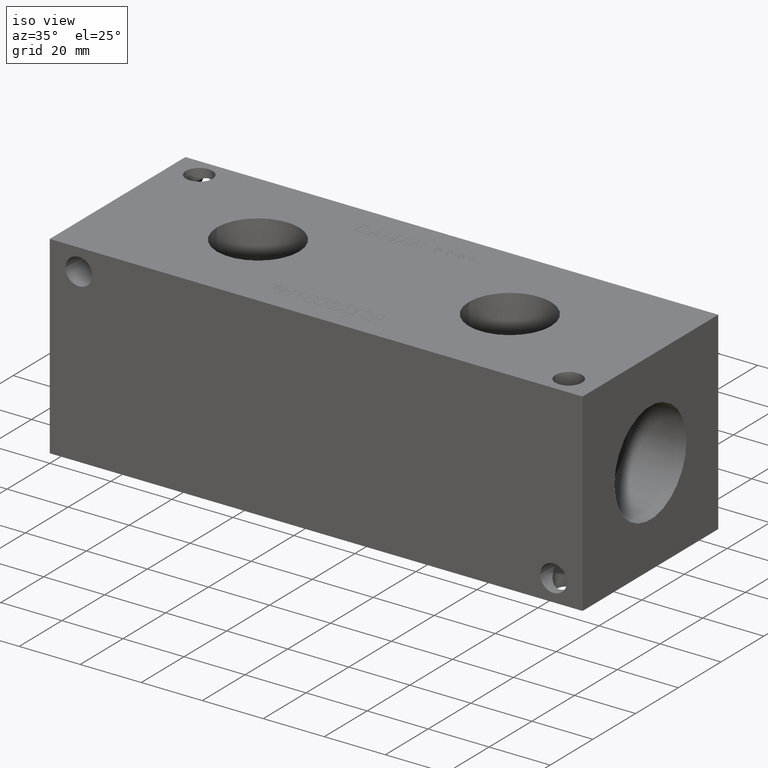
[diagram: clean part render]
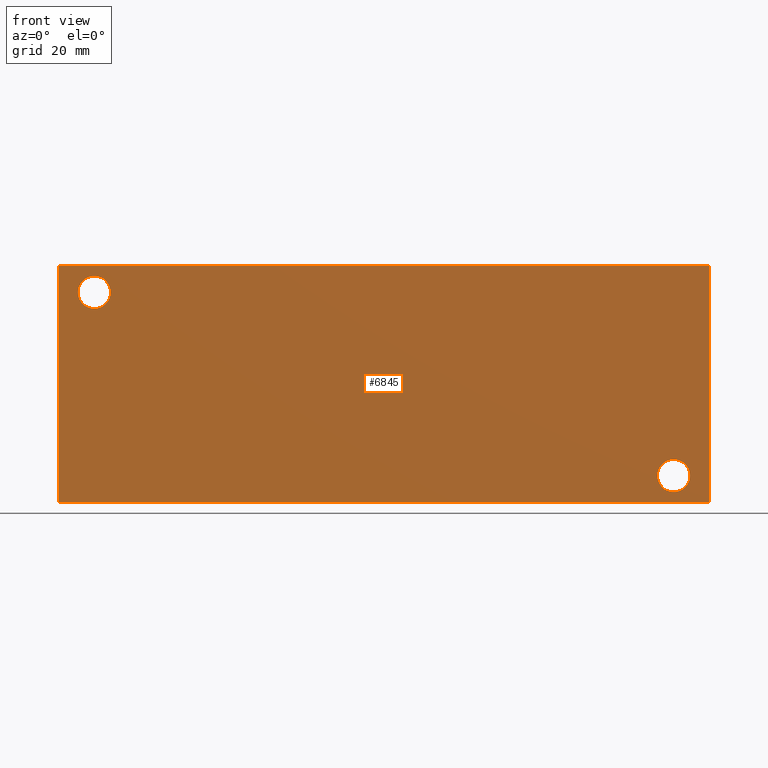
[diagram: tour spotlight — one face highlighted and labeled with its STEP entity id]
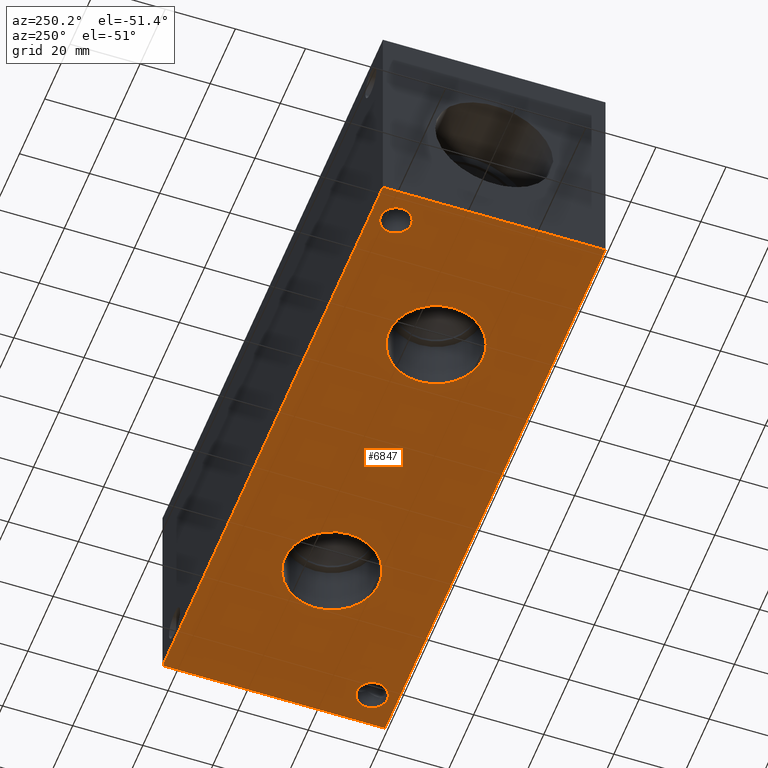
[diagram: tour spotlight — one face highlighted and labeled with its STEP entity id]
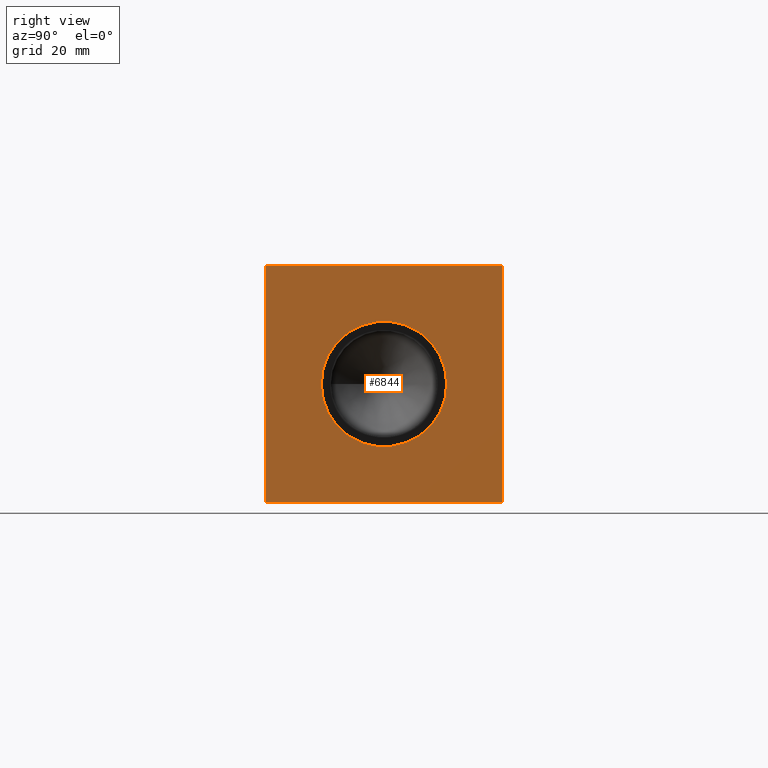
[diagram: tour spotlight — one face highlighted and labeled with its STEP entity id]
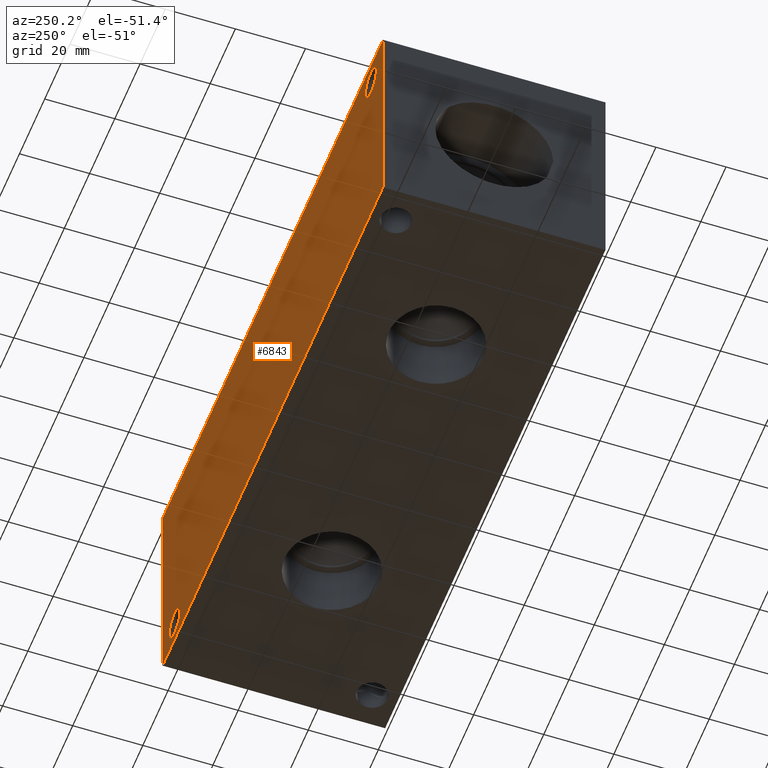
[diagram: tour spotlight — one face highlighted and labeled with its STEP entity id]
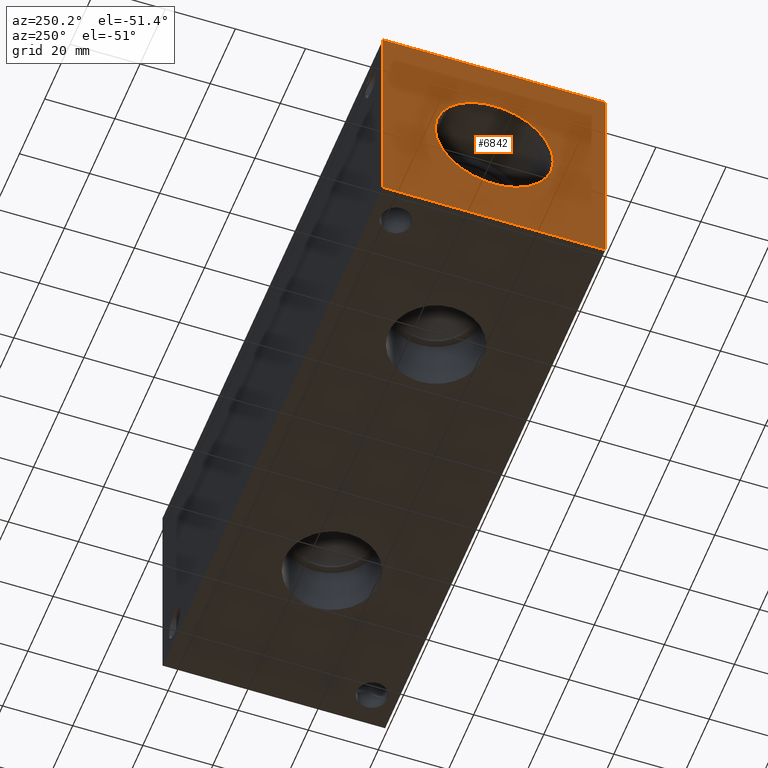
[diagram: tour spotlight — one face highlighted and labeled with its STEP entity id]
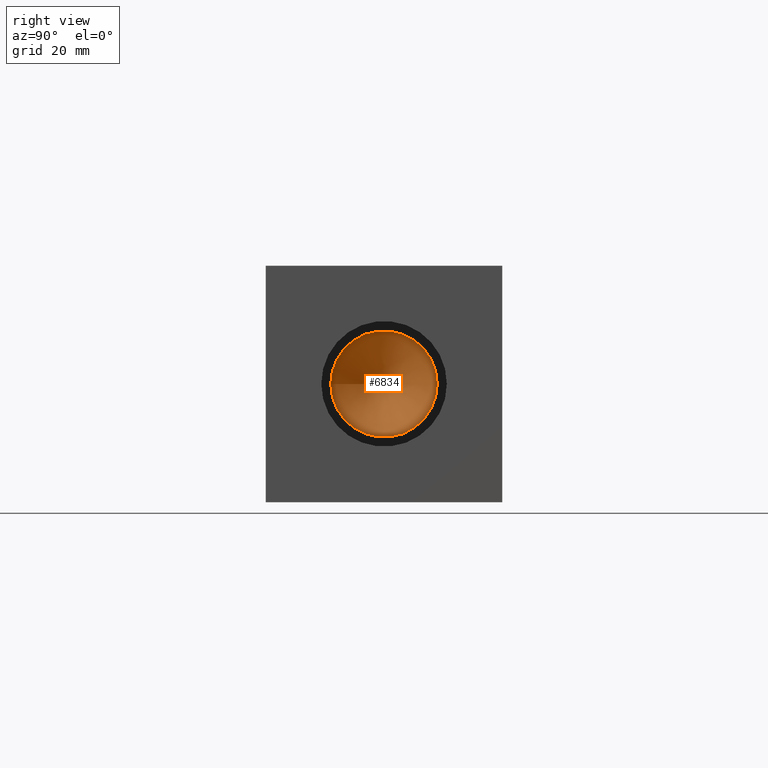
[diagram: tour spotlight — one face highlighted and labeled with its STEP entity id]
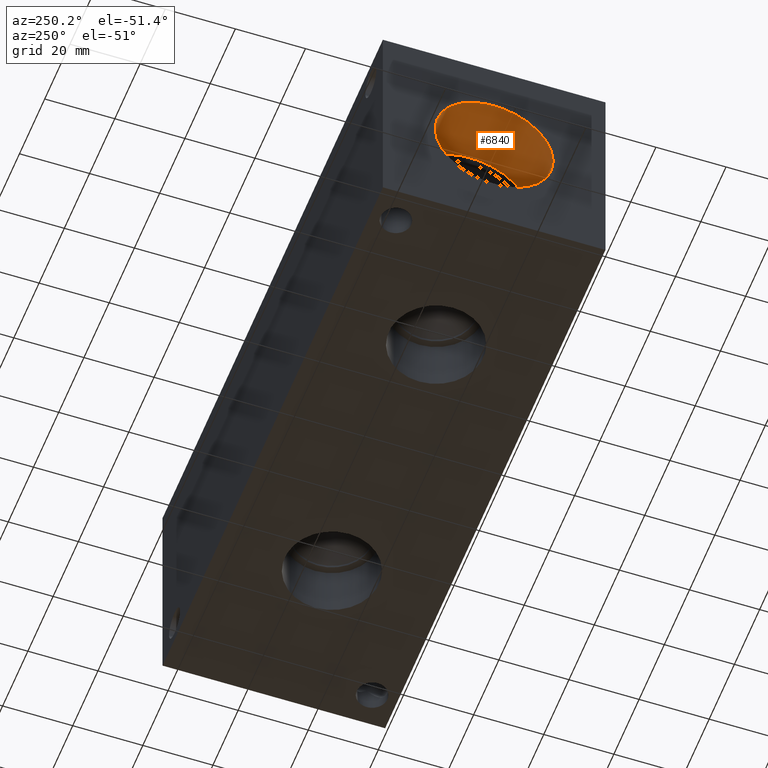
[diagram: tour spotlight — one face highlighted and labeled with its STEP entity id]
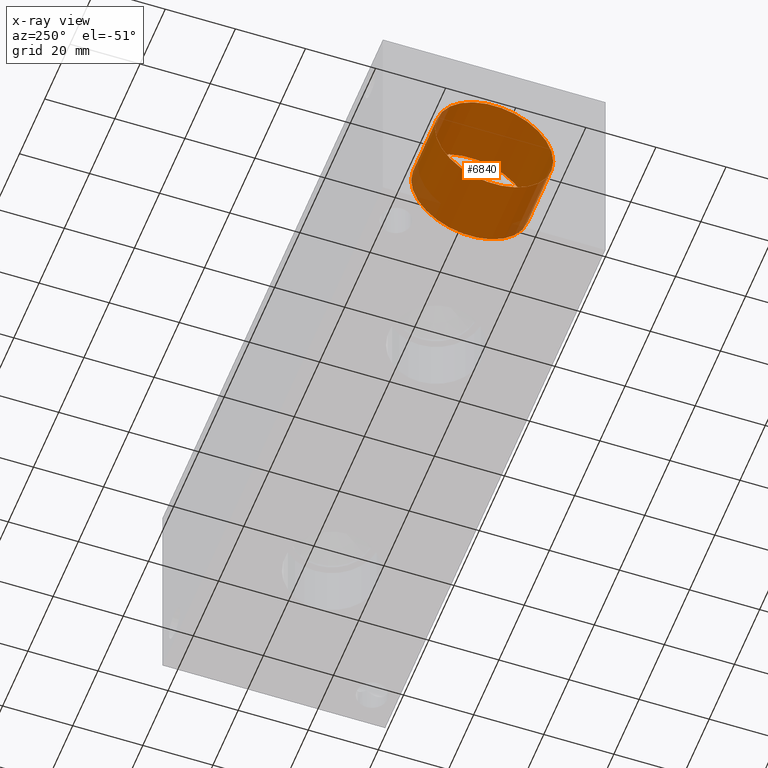
[diagram: x-ray of the same camera — body ghosted, this tour face saturated]
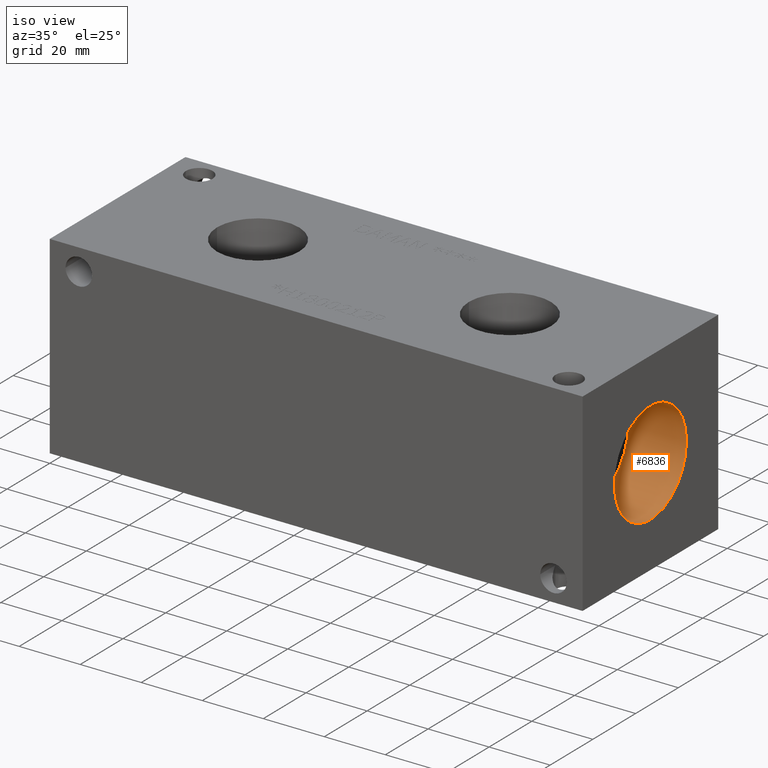
[diagram: tour spotlight — one face highlighted and labeled with its STEP entity id]
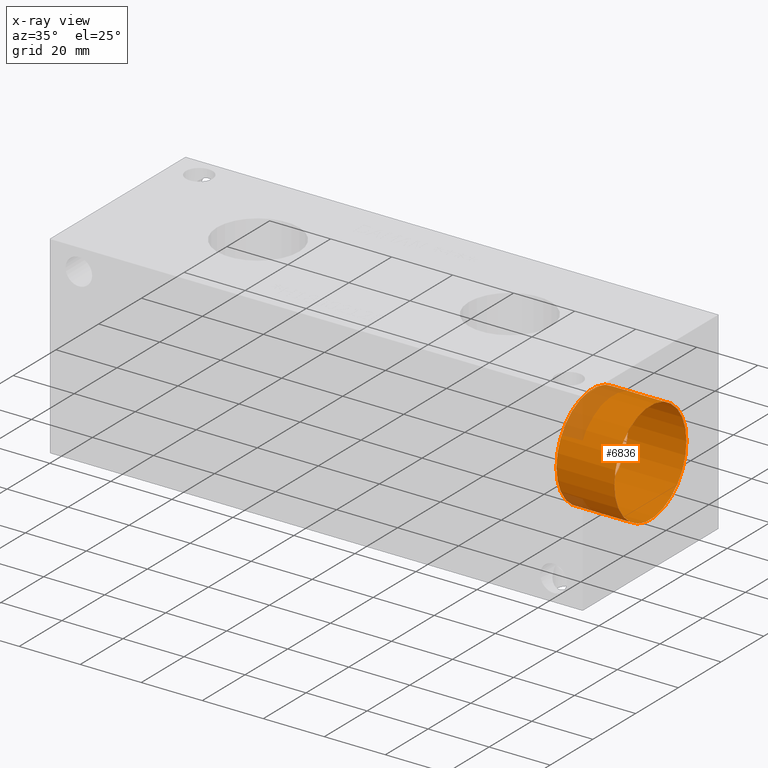
[diagram: x-ray of the same camera — body ghosted, this tour face saturated]
A machine part: a face-by-face anatomy tour. The part has 343 B-rep faces; the first image is the clean iso view, then the 8 largest visible faces are spotlighted one at a time (largest first), each with its STEP entity span.

Face 1 — front view, entity #6845. In plain terms, the highlighted planar face has unit normal (0, -1, 0).
Definition (entity closure, byte-faithful):
#70=CIRCLE('',#7115,4.3688);
#71=CIRCLE('',#7116,4.3688);
#73=CIRCLE('',#7124,4.3688);
#74=CIRCLE('',#7125,4.3688);
#143=FACE_BOUND('',#1108,.T.);
#144=FACE_BOUND('',#1109,.T.);
#380=PLANE('',#7181);
#723=FACE_OUTER_BOUND('',#1107,.T.);
#1107=EDGE_LOOP('',(#6103,#6104,#6105,#6106));
#1108=EDGE_LOOP('',(#6107,#6108));
#1109=EDGE_LOOP('',(#6109,#6110));
#1407=LINE('',#10407,#2113);
#1815=LINE('',#11507,#2521);
#1820=LINE('',#11516,#2526);
#1821=LINE('',#11518,#2527);
#2113=VECTOR('',#7643,10.);
#2521=VECTOR('',#8519,10.);
#2526=VECTOR('',#8528,10.);
#2527=VECTOR('',#8531,10.);
#2988=VERTEX_POINT('',#10405);
#2989=VERTEX_POINT('',#10406);
#3278=VERTEX_POINT('',#11380);
#3279=VERTEX_POINT('',#11381);
#3283=VERTEX_POINT('',#11396);
#3284=VERTEX_POINT('',#11397);
#3319=VERTEX_POINT('',#11505);
#3321=VERTEX_POINT('',#11514);
#3763=EDGE_CURVE('',#2988,#2989,#1407,.T.);
#4188=EDGE_CURVE('',#3278,#3279,#70,.T.);
#4189=EDGE_CURVE('',#3279,#3278,#71,.T.);
#4197=EDGE_CURVE('',#3283,#3284,#73,.T.);
#4198=EDGE_CURVE('',#3284,#3283,#74,.T.);
#4249=EDGE_CURVE('',#3319,#2988,#1815,.T.);
#4254=EDGE_CURVE('',#3321,#2989,#1820,.T.);
#4255=EDGE_CURVE('',#3319,#3321,#1821,.T.);
#6103=ORIENTED_EDGE('',*,*,#4255,.T.);
#6104=ORIENTED_EDGE('',*,*,#4254,.T.);
#6105=ORIENTED_EDGE('',*,*,#3763,.F.);
#6106=ORIENTED_EDGE('',*,*,#4249,.F.);
#6107=ORIENTED_EDGE('',*,*,#4188,.T.);
#6108=ORIENTED_EDGE('',*,*,#4189,.T.);
#6109=ORIENTED_EDGE('',*,*,#4197,.T.);
#6110=ORIENTED_EDGE('',*,*,#4198,.T.);
#6845=ADVANCED_FACE('',(#723,#143,#144),#380,.T.);
#7115=AXIS2_PLACEMENT_3D('',#11382,#8370,#8371);
#7116=AXIS2_PLACEMENT_3D('',#11383,#8372,#8373);
#7124=AXIS2_PLACEMENT_3D('',#11398,#8390,#8391);
#7125=AXIS2_PLACEMENT_3D('',#11399,#8392,#8393);
#7181=AXIS2_PLACEMENT_3D('',#11517,#8529,#8530);
#7643=DIRECTION('',(1.,0.,0.));
#8370=DIRECTION('center_axis',(0.,1.,0.));
#8371=DIRECTION('ref_axis',(1.,0.,0.));
#8372=DIRECTION('center_axis',(0.,1.,0.));
#8373=DIRECTION('ref_axis',(1.,0.,0.));
#8390=DIRECTION('center_axis',(0.,1.,0.));
#8391=DIRECTION('ref_axis',(1.,0.,0.));
#8392=DIRECTION('center_axis',(0.,1.,0.));
#8393=DIRECTION('ref_axis',(1.,0.,0.));
#8519=DIRECTION('',(0.,0.,1.));
#8528=DIRECTION('',(0.,0.,1.));
#8529=DIRECTION('center_axis',(0.,-1.,0.));
#8530=DIRECTION('ref_axis',(1.,0.,0.));
#8531=DIRECTION('',(1.,0.,0.));
#10405=CARTESIAN_POINT('',(0.,0.,63.5));
#10406=CARTESIAN_POINT('',(174.625,0.,63.5));
#10407=CARTESIAN_POINT('',(0.,0.,63.5));
#11380=CARTESIAN_POINT('',(13.8938,0.,56.3626));
#11381=CARTESIAN_POINT('',(5.1562,0.,56.3626));
#11382=CARTESIAN_POINT('Origin',(9.525,0.,56.3626));
#11383=CARTESIAN_POINT('Origin',(9.525,0.,56.3626));
#11396=CARTESIAN_POINT('',(169.4688,0.,7.1374));
#11397=CARTESIAN_POINT('',(160.7312,0.,7.1374));
#11398=CARTESIAN_POINT('Origin',(165.1,0.,7.1374));
#11399=CARTESIAN_POINT('Origin',(165.1,0.,7.1374));
#11505=CARTESIAN_POINT('',(0.,0.,0.));
#11507=CARTESIAN_POINT('',(0.,0.,0.));
#11514=CARTESIAN_POINT('',(174.625,0.,0.));
#11516=CARTESIAN_POINT('',(174.625,0.,0.));
#11517=CARTESIAN_POINT('Origin',(0.,0.,0.));
#11518=CARTESIAN_POINT('',(0.,0.,0.));

Face 2 — auxiliary view, entity #6847. In plain terms, the highlighted planar face has unit normal (0, 0, 1).
Definition (entity closure, byte-faithful):
#61=CIRCLE('',#7100,13.462);
#62=CIRCLE('',#7101,13.462);
#68=CIRCLE('',#7111,13.462);
#69=CIRCLE('',#7112,13.462);
#76=CIRCLE('',#7135,4.3688);
#77=CIRCLE('',#7137,4.3688);
#145=FACE_BOUND('',#1112,.T.);
#146=FACE_BOUND('',#1113,.T.);
#147=FACE_BOUND('',#1114,.T.);
#148=FACE_BOUND('',#1115,.T.);
#382=PLANE('',#7183);
#725=FACE_OUTER_BOUND('',#1111,.T.);
#1111=EDGE_LOOP('',(#6114,#6115,#6116,#6117));
#1112=EDGE_LOOP('',(#6118,#6119));
#1113=EDGE_LOOP('',(#6120,#6121));
#1114=EDGE_LOOP('',(#6122));
#1115=EDGE_LOOP('',(#6123));
#1814=LINE('',#11506,#2520);
#1817=LINE('',#11511,#2523);
#1819=LINE('',#11515,#2525);
#1821=LINE('',#11518,#2527);
#2520=VECTOR('',#8518,10.);
#2523=VECTOR('',#8523,10.);
#2525=VECTOR('',#8527,10.);
#2527=VECTOR('',#8531,10.);
#3268=VERTEX_POINT('',#11350);
#3269=VERTEX_POINT('',#11351);
#3276=VERTEX_POINT('',#11372);
#3277=VERTEX_POINT('',#11373);
#3288=VERTEX_POINT('',#11416);
#3289=VERTEX_POINT('',#11420);
#3318=VERTEX_POINT('',#11504);
#3319=VERTEX_POINT('',#11505);
#3320=VERTEX_POINT('',#11510);
#3321=VERTEX_POINT('',#11514);
#4174=EDGE_CURVE('',#3268,#3269,#61,.T.);
#4175=EDGE_CURVE('',#3269,#3268,#62,.T.);
#4184=EDGE_CURVE('',#3276,#3277,#68,.T.);
#4185=EDGE_CURVE('',#3277,#3276,#69,.T.);
#4209=EDGE_CURVE('',#3288,#3288,#76,.T.);
#4211=EDGE_CURVE('',#3289,#3289,#77,.T.);
#4248=EDGE_CURVE('',#3318,#3319,#1814,.T.);
#4251=EDGE_CURVE('',#3320,#3318,#1817,.T.);
#4253=EDGE_CURVE('',#3321,#3320,#1819,.T.);
#4255=EDGE_CURVE('',#3319,#3321,#1821,.T.);
#6114=ORIENTED_EDGE('',*,*,#4255,.F.);
#6115=ORIENTED_EDGE('',*,*,#4248,.F.);
#6116=ORIENTED_EDGE('',*,*,#4251,.F.);
#6117=ORIENTED_EDGE('',*,*,#4253,.F.);
#6118=ORIENTED_EDGE('',*,*,#4174,.T.);
#6119=ORIENTED_EDGE('',*,*,#4175,.T.);
#6120=ORIENTED_EDGE('',*,*,#4184,.T.);
#6121=ORIENTED_EDGE('',*,*,#4185,.T.);
#6122=ORIENTED_EDGE('',*,*,#4209,.T.);
#6123=ORIENTED_EDGE('',*,*,#4211,.T.);
#6847=ADVANCED_FACE('',(#725,#145,#146,#147,#148),#382,.F.);
#7100=AXIS2_PLACEMENT_3D('',#11352,#8335,#8336);
#7101=AXIS2_PLACEMENT_3D('',#11353,#8337,#8338);
#7111=AXIS2_PLACEMENT_3D('',#11374,#8360,#8361);
#7112=AXIS2_PLACEMENT_3D('',#11375,#8362,#8363);
#7135=AXIS2_PLACEMENT_3D('',#11418,#8417,#8418);
#7137=AXIS2_PLACEMENT_3D('',#11422,#8422,#8423);
#7183=AXIS2_PLACEMENT_3D('',#11520,#8534,#8535);
#8335=DIRECTION('center_axis',(0.,0.,1.));
#8336=DIRECTION('ref_axis',(1.,0.,0.));
#8337=DIRECTION('center_axis',(0.,0.,1.));
#8338=DIRECTION('ref_axis',(1.,0.,0.));
#8360=DIRECTION('center_axis',(0.,0.,1.));
#8361=DIRECTION('ref_axis',(1.,0.,0.));
#8362=DIRECTION('center_axis',(0.,0.,1.));
#8363=DIRECTION('ref_axis',(1.,0.,0.));
#8417=DIRECTION('center_axis',(0.,0.,1.));
#8418=DIRECTION('ref_axis',(1.,0.,0.));
#8422=DIRECTION('center_axis',(0.,0.,1.));
#8423=DIRECTION('ref_axis',(1.,0.,0.));
#8518=DIRECTION('',(0.,-1.,0.));
#8523=DIRECTION('',(-1.,0.,0.));
#8527=DIRECTION('',(0.,1.,0.));
#8531=DIRECTION('',(1.,0.,0.));
#8534=DIRECTION('center_axis',(0.,0.,1.));
#8535=DIRECTION('ref_axis',(1.,0.,0.));
#11350=CARTESIAN_POINT('',(59.4868,31.75,0.));
#11351=CARTESIAN_POINT('',(32.5628,31.75,1.11022302462516E-15));
#11352=CARTESIAN_POINT('Origin',(46.0248,31.75,0.));
#11353=CARTESIAN_POINT('Origin',(46.0248,31.75,0.));
#11372=CARTESIAN_POINT('',(142.0368,31.75,0.));
#11373=CARTESIAN_POINT('',(115.1128,31.75,1.11022302462516E-15));
#11374=CARTESIAN_POINT('Origin',(128.5748,31.75,0.));
#11375=CARTESIAN_POINT('Origin',(128.5748,31.75,0.));
#11416=CARTESIAN_POINT('',(5.1562,56.3626,0.));
#11418=CARTESIAN_POINT('Origin',(9.525,56.3626,0.));
#11420=CARTESIAN_POINT('',(160.7312,7.1374,0.));
#11422=CARTESIAN_POINT('Origin',(165.1,7.1374,0.));
#11504=CARTESIAN_POINT('',(0.,63.5,0.));
#11505=CARTESIAN_POINT('',(0.,0.,0.));
#11506=CARTESIAN_POINT('',(0.,63.5,0.));
#11510=CARTESIAN_POINT('',(174.625,63.5,0.));
#11511=CARTESIAN_POINT('',(174.625,63.5,0.));
#11514=CARTESIAN_POINT('',(174.625,0.,0.));
#11515=CARTESIAN_POINT('',(174.625,0.,0.));
#11518=CARTESIAN_POINT('',(0.,0.,0.));
#11520=CARTESIAN_POINT('Origin',(87.3125,31.75,0.));

Face 3 — right view, entity #6844. In plain terms, the highlighted planar face has unit normal (1, 0, 0).
Definition (entity closure, byte-faithful):
#93=CIRCLE('',#7164,16.8529);
#94=CIRCLE('',#7165,16.8529);
#142=FACE_BOUND('',#1106,.T.);
#379=PLANE('',#7180);
#722=FACE_OUTER_BOUND('',#1105,.T.);
#1105=EDGE_LOOP('',(#6097,#6098,#6099,#6100));
#1106=EDGE_LOOP('',(#6101,#6102));
#1408=LINE('',#10409,#2114);
#1818=LINE('',#11512,#2524);
#1819=LINE('',#11515,#2525);
#1820=LINE('',#11516,#2526);
#2114=VECTOR('',#7644,10.);
#2524=VECTOR('',#8524,10.);
#2525=VECTOR('',#8527,10.);
#2526=VECTOR('',#8528,10.);
#2989=VERTEX_POINT('',#10406);
#2990=VERTEX_POINT('',#10408);
#3308=VERTEX_POINT('',#11474);
#3309=VERTEX_POINT('',#11475);
#3320=VERTEX_POINT('',#11510);
#3321=VERTEX_POINT('',#11514);
#3764=EDGE_CURVE('',#2989,#2990,#1408,.T.);
#4234=EDGE_CURVE('',#3308,#3309,#93,.T.);
#4235=EDGE_CURVE('',#3309,#3308,#94,.T.);
#4252=EDGE_CURVE('',#3320,#2990,#1818,.T.);
#4253=EDGE_CURVE('',#3321,#3320,#1819,.T.);
#4254=EDGE_CURVE('',#3321,#2989,#1820,.T.);
#6097=ORIENTED_EDGE('',*,*,#4253,.T.);
#6098=ORIENTED_EDGE('',*,*,#4252,.T.);
#6099=ORIENTED_EDGE('',*,*,#3764,.F.);
#6100=ORIENTED_EDGE('',*,*,#4254,.F.);
#6101=ORIENTED_EDGE('',*,*,#4234,.T.);
#6102=ORIENTED_EDGE('',*,*,#4235,.T.);
#6844=ADVANCED_FACE('',(#722,#142),#379,.T.);
#7164=AXIS2_PLACEMENT_3D('',#11476,#8483,#8484);
#7165=AXIS2_PLACEMENT_3D('',#11477,#8485,#8486);
#7180=AXIS2_PLACEMENT_3D('',#11513,#8525,#8526);
#7644=DIRECTION('',(0.,1.,0.));
#8483=DIRECTION('center_axis',(-1.,0.,0.));
#8484=DIRECTION('ref_axis',(0.,1.,0.));
#8485=DIRECTION('center_axis',(-1.,0.,0.));
#8486=DIRECTION('ref_axis',(0.,1.,0.));
#8524=DIRECTION('',(0.,0.,1.));
#8525=DIRECTION('center_axis',(1.,0.,0.));
#8526=DIRECTION('ref_axis',(0.,1.,0.));
#8527=DIRECTION('',(0.,1.,0.));
#8528=DIRECTION('',(0.,0.,1.));
#10406=CARTESIAN_POINT('',(174.625,0.,63.5));
#10408=CARTESIAN_POINT('',(174.625,63.5,63.5));
#10409=CARTESIAN_POINT('',(174.625,0.,63.5));
#11474=CARTESIAN_POINT('',(174.625,48.6029,31.75));
#11475=CARTESIAN_POINT('',(174.625,14.8971,31.75));
#11476=CARTESIAN_POINT('Origin',(174.625,31.75,31.75));
#11477=CARTESIAN_POINT('Origin',(174.625,31.75,31.75));
#11510=CARTESIAN_POINT('',(174.625,63.5,0.));
#11512=CARTESIAN_POINT('',(174.625,63.5,0.));
#11513=CARTESIAN_POINT('Origin',(174.625,0.,0.));
#11514=CARTESIAN_POINT('',(174.625,0.,0.));
#11515=CARTESIAN_POINT('',(174.625,0.,0.));
#11516=CARTESIAN_POINT('',(174.625,0.,0.));

Face 4 — auxiliary view, entity #6843. In plain terms, the highlighted planar face has unit normal (0, 1, 0).
Definition (entity closure, byte-faithful):
#72=CIRCLE('',#7122,4.3688);
#75=CIRCLE('',#7131,4.3688);
#140=FACE_BOUND('',#1103,.T.);
#141=FACE_BOUND('',#1104,.T.);
#378=PLANE('',#7179);
#721=FACE_OUTER_BOUND('',#1102,.T.);
#1102=EDGE_LOOP('',(#6091,#6092,#6093,#6094));
#1103=EDGE_LOOP('',(#6095));
#1104=EDGE_LOOP('',(#6096));
#1409=LINE('',#10411,#2115);
#1816=LINE('',#11508,#2522);
#1817=LINE('',#11511,#2523);
#1818=LINE('',#11512,#2524);
#2115=VECTOR('',#7645,10.);
#2522=VECTOR('',#8520,10.);
#2523=VECTOR('',#8523,10.);
#2524=VECTOR('',#8524,10.);
#2990=VERTEX_POINT('',#10408);
#2991=VERTEX_POINT('',#10410);
#3282=VERTEX_POINT('',#11392);
#3287=VERTEX_POINT('',#11408);
#3318=VERTEX_POINT('',#11504);
#3320=VERTEX_POINT('',#11510);
#3765=EDGE_CURVE('',#2990,#2991,#1409,.T.);
#4196=EDGE_CURVE('',#3282,#3282,#72,.T.);
#4205=EDGE_CURVE('',#3287,#3287,#75,.T.);
#4250=EDGE_CURVE('',#3318,#2991,#1816,.T.);
#4251=EDGE_CURVE('',#3320,#3318,#1817,.T.);
#4252=EDGE_CURVE('',#3320,#2990,#1818,.T.);
#6091=ORIENTED_EDGE('',*,*,#4251,.T.);
#6092=ORIENTED_EDGE('',*,*,#4250,.T.);
#6093=ORIENTED_EDGE('',*,*,#3765,.F.);
#6094=ORIENTED_EDGE('',*,*,#4252,.F.);
#6095=ORIENTED_EDGE('',*,*,#4196,.T.);
#6096=ORIENTED_EDGE('',*,*,#4205,.T.);
#6843=ADVANCED_FACE('',(#721,#140,#141),#378,.T.);
#7122=AXIS2_PLACEMENT_3D('',#11394,#8386,#8387);
#7131=AXIS2_PLACEMENT_3D('',#11410,#8406,#8407);
#7179=AXIS2_PLACEMENT_3D('',#11509,#8521,#8522);
#7645=DIRECTION('',(-1.,0.,0.));
#8386=DIRECTION('center_axis',(0.,-1.,0.));
#8387=DIRECTION('ref_axis',(1.,0.,0.));
#8406=DIRECTION('center_axis',(0.,-1.,0.));
#8407=DIRECTION('ref_axis',(1.,0.,0.));
#8520=DIRECTION('',(0.,0.,1.));
#8521=DIRECTION('center_axis',(0.,1.,0.));
#8522=DIRECTION('ref_axis',(-1.,0.,0.));
#8523=DIRECTION('',(-1.,0.,0.));
#8524=DIRECTION('',(0.,0.,1.));
#10408=CARTESIAN_POINT('',(174.625,63.5,63.5));
#10410=CARTESIAN_POINT('',(0.,63.5,63.5));
#10411=CARTESIAN_POINT('',(174.625,63.5,63.5));
#11392=CARTESIAN_POINT('',(5.1562,63.5,56.3626));
#11394=CARTESIAN_POINT('Origin',(9.525,63.5,56.3626));
#11408=CARTESIAN_POINT('',(160.7312,63.5,7.1374));
#11410=CARTESIAN_POINT('Origin',(165.1,63.5,7.1374));
#11504=CARTESIAN_POINT('',(0.,63.5,0.));
#11508=CARTESIAN_POINT('',(0.,63.5,0.));
#11509=CARTESIAN_POINT('Origin',(174.625,63.5,0.));
#11510=CARTESIAN_POINT('',(174.625,63.5,0.));
#11511=CARTESIAN_POINT('',(174.625,63.5,0.));
#11512=CARTESIAN_POINT('',(174.625,63.5,0.));

Face 5 — auxiliary view, entity #6842. In plain terms, the highlighted planar face has unit normal (-1, 0, 0).
Definition (entity closure, byte-faithful):
#100=CIRCLE('',#7175,16.8529);
#101=CIRCLE('',#7176,16.8529);
#139=FACE_BOUND('',#1101,.T.);
#377=PLANE('',#7178);
#720=FACE_OUTER_BOUND('',#1100,.T.);
#1100=EDGE_LOOP('',(#6085,#6086,#6087,#6088));
#1101=EDGE_LOOP('',(#6089,#6090));
#1410=LINE('',#10412,#2116);
#1814=LINE('',#11506,#2520);
#1815=LINE('',#11507,#2521);
#1816=LINE('',#11508,#2522);
#2116=VECTOR('',#7646,10.);
#2520=VECTOR('',#8518,10.);
#2521=VECTOR('',#8519,10.);
#2522=VECTOR('',#8520,10.);
#2988=VERTEX_POINT('',#10405);
#2991=VERTEX_POINT('',#10410);
#3316=VERTEX_POINT('',#11496);
#3317=VERTEX_POINT('',#11497);
#3318=VERTEX_POINT('',#11504);
#3319=VERTEX_POINT('',#11505);
#3766=EDGE_CURVE('',#2991,#2988,#1410,.T.);
#4244=EDGE_CURVE('',#3316,#3317,#100,.T.);
#4245=EDGE_CURVE('',#3317,#3316,#101,.T.);
#4248=EDGE_CURVE('',#3318,#3319,#1814,.T.);
#4249=EDGE_CURVE('',#3319,#2988,#1815,.T.);
#4250=EDGE_CURVE('',#3318,#2991,#1816,.T.);
#6085=ORIENTED_EDGE('',*,*,#4248,.T.);
#6086=ORIENTED_EDGE('',*,*,#4249,.T.);
#6087=ORIENTED_EDGE('',*,*,#3766,.F.);
#6088=ORIENTED_EDGE('',*,*,#4250,.F.);
#6089=ORIENTED_EDGE('',*,*,#4244,.T.);
#6090=ORIENTED_EDGE('',*,*,#4245,.T.);
#6842=ADVANCED_FACE('',(#720,#139),#377,.T.);
#7175=AXIS2_PLACEMENT_3D('',#11498,#8508,#8509);
#7176=AXIS2_PLACEMENT_3D('',#11499,#8510,#8511);
#7178=AXIS2_PLACEMENT_3D('',#11503,#8516,#8517);
#7646=DIRECTION('',(0.,-1.,0.));
#8508=DIRECTION('center_axis',(1.,0.,0.));
#8509=DIRECTION('ref_axis',(0.,1.,0.));
#8510=DIRECTION('center_axis',(1.,0.,0.));
#8511=DIRECTION('ref_axis',(0.,1.,0.));
#8516=DIRECTION('center_axis',(-1.,0.,0.));
#8517=DIRECTION('ref_axis',(0.,-1.,0.));
#8518=DIRECTION('',(0.,-1.,0.));
#8519=DIRECTION('',(0.,0.,1.));
#8520=DIRECTION('',(0.,0.,1.));
#10405=CARTESIAN_POINT('',(0.,0.,63.5));
#10410=CARTESIAN_POINT('',(0.,63.5,63.5));
#10412=CARTESIAN_POINT('',(0.,63.5,63.5));
#11496=CARTESIAN_POINT('',(0.,48.6029,31.75));
#11497=CARTESIAN_POINT('',(0.,14.8971,31.75));
#11498=CARTESIAN_POINT('Origin',(0.,31.75,31.75));
#11499=CARTESIAN_POINT('Origin',(0.,31.75,31.75));
#11503=CARTESIAN_POINT('Origin',(0.,63.5,0.));
#11504=CARTESIAN_POINT('',(0.,63.5,0.));
#11505=CARTESIAN_POINT('',(0.,0.,0.));
#11506=CARTESIAN_POINT('',(0.,63.5,0.));
#11507=CARTESIAN_POINT('',(0.,0.,0.));
#11508=CARTESIAN_POINT('',(0.,63.5,0.));

Face 6 — right view, entity #6834. In plain terms, the highlighted conical surface has half-angle 60 deg.
Definition (entity closure, byte-faithful):
#46=CONICAL_SURFACE('',#7156,7.14375,1.0471975511966);
#88=CIRCLE('',#7157,14.2875);
#89=CIRCLE('',#7158,14.2875);
#712=FACE_OUTER_BOUND('',#1090,.T.);
#1090=EDGE_LOOP('',(#6049,#6050,#6051,#6052));
#1808=LINE('',#11464,#2514);
#2514=VECTOR('',#8470,7.14375);
#3302=VERTEX_POINT('',#11460);
#3303=VERTEX_POINT('',#11461);
#3304=VERTEX_POINT('',#11463);
#4228=EDGE_CURVE('',#3302,#3303,#88,.T.);
#4229=EDGE_CURVE('',#3303,#3304,#1808,.T.);
#4230=EDGE_CURVE('',#3303,#3302,#89,.T.);
#6049=ORIENTED_EDGE('',*,*,#4228,.T.);
#6050=ORIENTED_EDGE('',*,*,#4229,.T.);
#6051=ORIENTED_EDGE('',*,*,#4229,.F.);
#6052=ORIENTED_EDGE('',*,*,#4230,.T.);
#6834=ADVANCED_FACE('',(#712),#46,.F.);
#7156=AXIS2_PLACEMENT_3D('',#11459,#8466,#8467);
#7157=AXIS2_PLACEMENT_3D('',#11462,#8468,#8469);
#7158=AXIS2_PLACEMENT_3D('',#11465,#8471,#8472);
#8466=DIRECTION('center_axis',(1.,0.,0.));
#8467=DIRECTION('ref_axis',(0.,1.,0.));
#8468=DIRECTION('center_axis',(1.,0.,0.));
#8469=DIRECTION('ref_axis',(0.,1.,0.));
#8470=DIRECTION('',(-0.5,0.866025403784438,1.06057523872491E-16));
#8471=DIRECTION('center_axis',(1.,0.,0.));
#8472=DIRECTION('ref_axis',(0.,1.,0.));
#11459=CARTESIAN_POINT('Origin',(150.676464014477,31.75,31.75));
#11460=CARTESIAN_POINT('',(154.80091,46.0375,31.75));
#11461=CARTESIAN_POINT('',(154.80091,17.4625,31.75));
#11462=CARTESIAN_POINT('Origin',(154.80091,31.75,31.75));
#11463=CARTESIAN_POINT('',(146.552018028953,31.75,31.75));
#11464=CARTESIAN_POINT('',(150.676464014477,24.60625,31.75));
#11465=CARTESIAN_POINT('Origin',(154.80091,31.75,31.75));

Face 7 — auxiliary view, entity #6840. An x-ray twin of the same camera follows (body ghosted, this face saturated) — the face is partly hidden behind the body. In plain terms, the highlighted cylindrical surface (bore or boss wall) has radius 16.8529 mm, axis along (-1, 0, 0).
Definition (entity closure, byte-faithful):
#40=CYLINDRICAL_SURFACE('',#7174,16.8529);
#97=CIRCLE('',#7171,16.8529);
#98=CIRCLE('',#7172,16.8529);
#100=CIRCLE('',#7175,16.8529);
#101=CIRCLE('',#7176,16.8529);
#718=FACE_OUTER_BOUND('',#1098,.T.);
#1098=EDGE_LOOP('',(#6074,#6075,#6076,#6077,#6078,#6079));
#1812=LINE('',#11500,#2518);
#2518=VECTOR('',#8512,16.8529);
#3313=VERTEX_POINT('',#11489);
#3314=VERTEX_POINT('',#11490);
#3316=VERTEX_POINT('',#11496);
#3317=VERTEX_POINT('',#11497);
#4241=EDGE_CURVE('',#3313,#3314,#97,.T.);
#4242=EDGE_CURVE('',#3314,#3313,#98,.T.);
#4244=EDGE_CURVE('',#3316,#3317,#100,.T.);
#4245=EDGE_CURVE('',#3317,#3316,#101,.T.);
#4246=EDGE_CURVE('',#3317,#3314,#1812,.T.);
#6074=ORIENTED_EDGE('',*,*,#4244,.F.);
#6075=ORIENTED_EDGE('',*,*,#4245,.F.);
#6076=ORIENTED_EDGE('',*,*,#4246,.T.);
#6077=ORIENTED_EDGE('',*,*,#4241,.F.);
#6078=ORIENTED_EDGE('',*,*,#4242,.F.);
#6079=ORIENTED_EDGE('',*,*,#4246,.F.);
#6840=ADVANCED_FACE('',(#718),#40,.F.);
#7171=AXIS2_PLACEMENT_3D('',#11491,#8500,#8501);
#7172=AXIS2_PLACEMENT_3D('',#11492,#8502,#8503);
#7174=AXIS2_PLACEMENT_3D('',#11495,#8506,#8507);
#7175=AXIS2_PLACEMENT_3D('',#11498,#8508,#8509);
#7176=AXIS2_PLACEMENT_3D('',#11499,#8510,#8511);
#8500=DIRECTION('center_axis',(-1.,0.,0.));
#8501=DIRECTION('ref_axis',(0.,1.,0.));
#8502=DIRECTION('center_axis',(-1.,0.,0.));
#8503=DIRECTION('ref_axis',(0.,1.,0.));
#8506=DIRECTION('center_axis',(-1.,0.,0.));
#8507=DIRECTION('ref_axis',(0.,1.,0.));
#8508=DIRECTION('center_axis',(1.,0.,0.));
#8509=DIRECTION('ref_axis',(0.,1.,0.));
#8510=DIRECTION('center_axis',(1.,0.,0.));
#8511=DIRECTION('ref_axis',(0.,1.,0.));
#8512=DIRECTION('',(1.,0.,0.));
#11489=CARTESIAN_POINT('',(18.9992,48.6029,31.75));
#11490=CARTESIAN_POINT('',(18.9992,14.8971,31.75));
#11491=CARTESIAN_POINT('Origin',(18.9992,31.75,31.75));
#11492=CARTESIAN_POINT('Origin',(18.9992,31.75,31.75));
#11495=CARTESIAN_POINT('Origin',(9.4996,31.75,31.75));
#11496=CARTESIAN_POINT('',(0.,48.6029,31.75));
#11497=CARTESIAN_POINT('',(0.,14.8971,31.75));
#11498=CARTESIAN_POINT('Origin',(0.,31.75,31.75));
#11499=CARTESIAN_POINT('Origin',(0.,31.75,31.75));
#11500=CARTESIAN_POINT('',(9.4996,14.8971,31.75));

Face 8 — iso view, entity #6836. An x-ray twin of the same camera follows (body ghosted, this face saturated) — the face is partly hidden behind the body. In plain terms, the highlighted cylindrical surface (bore or boss wall) has radius 16.8529 mm, axis along (1, 0, 0).
Definition (entity closure, byte-faithful):
#38=CYLINDRICAL_SURFACE('',#7163,16.8529);
#90=CIRCLE('',#7160,16.8529);
#91=CIRCLE('',#7161,16.8529);
#93=CIRCLE('',#7164,16.8529);
#94=CIRCLE('',#7165,16.8529);
#714=FACE_OUTER_BOUND('',#1093,.T.);
#1093=EDGE_LOOP('',(#6056,#6057,#6058,#6059,#6060,#6061));
#1809=LINE('',#11478,#2515);
#2515=VECTOR('',#8487,16.8529);
#3305=VERTEX_POINT('',#11467);
#3306=VERTEX_POINT('',#11468);
#3308=VERTEX_POINT('',#11474);
#3309=VERTEX_POINT('',#11475);
#4231=EDGE_CURVE('',#3305,#3306,#90,.T.);
#4232=EDGE_CURVE('',#3306,#3305,#91,.T.);
#4234=EDGE_CURVE('',#3308,#3309,#93,.T.);
#4235=EDGE_CURVE('',#3309,#3308,#94,.T.);
#4236=EDGE_CURVE('',#3309,#3306,#1809,.T.);
#6056=ORIENTED_EDGE('',*,*,#4234,.F.);
#6057=ORIENTED_EDGE('',*,*,#4235,.F.);
#6058=ORIENTED_EDGE('',*,*,#4236,.T.);
#6059=ORIENTED_EDGE('',*,*,#4231,.F.);
#6060=ORIENTED_EDGE('',*,*,#4232,.F.);
#6061=ORIENTED_EDGE('',*,*,#4236,.F.);
#6836=ADVANCED_FACE('',(#714),#38,.F.);
#7160=AXIS2_PLACEMENT_3D('',#11469,#8475,#8476);
#7161=AXIS2_PLACEMENT_3D('',#11470,#8477,#8478);
#7163=AXIS2_PLACEMENT_3D('',#11473,#8481,#8482);
#7164=AXIS2_PLACEMENT_3D('',#11476,#8483,#8484);
#7165=AXIS2_PLACEMENT_3D('',#11477,#8485,#8486);
#8475=DIRECTION('center_axis',(1.,0.,0.));
#8476=DIRECTION('ref_axis',(0.,1.,0.));
#8477=DIRECTION('center_axis',(1.,0.,0.));
#8478=DIRECTION('ref_axis',(0.,1.,0.));
#8481=DIRECTION('center_axis',(1.,0.,0.));
#8482=DIRECTION('ref_axis',(0.,1.,0.));
#8483=DIRECTION('center_axis',(-1.,0.,0.));
#8484=DIRECTION('ref_axis',(0.,1.,0.));
#8485=DIRECTION('center_axis',(-1.,0.,0.));
#8486=DIRECTION('ref_axis',(0.,1.,0.));
#8487=DIRECTION('',(-1.,0.,0.));
#11467=CARTESIAN_POINT('',(155.6258,48.6029,31.75));
#11468=CARTESIAN_POINT('',(155.6258,14.8971,31.75));
#11469=CARTESIAN_POINT('Origin',(155.6258,31.75,31.75));
#11470=CARTESIAN_POINT('Origin',(155.6258,31.75,31.75));
#11473=CARTESIAN_POINT('Origin',(165.1254,31.75,31.75));
#11474=CARTESIAN_POINT('',(174.625,48.6029,31.75));
#11475=CARTESIAN_POINT('',(174.625,14.8971,31.75));
#11476=CARTESIAN_POINT('Origin',(174.625,31.75,31.75));
#11477=CARTESIAN_POINT('Origin',(174.625,31.75,31.75));
#11478=CARTESIAN_POINT('',(165.1254,14.8971,31.75));